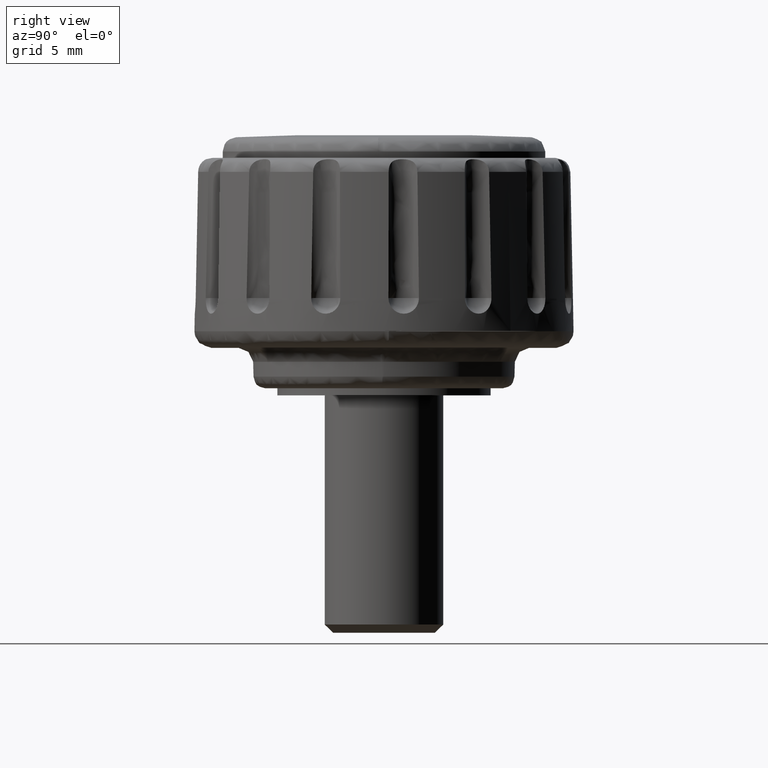
[diagram: clean part render]
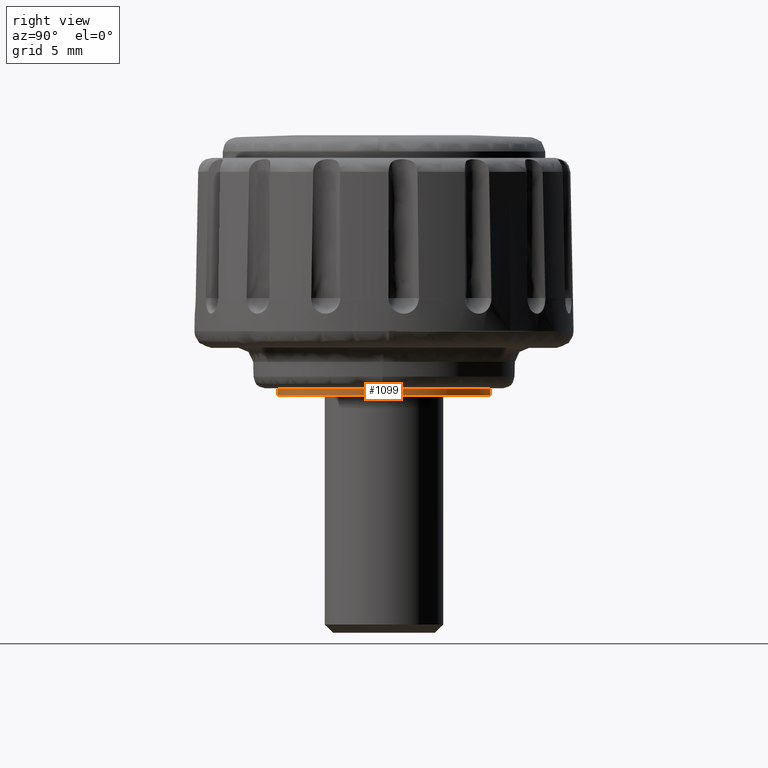
[diagram: same view with one face highlighted and labeled with its STEP entity id]
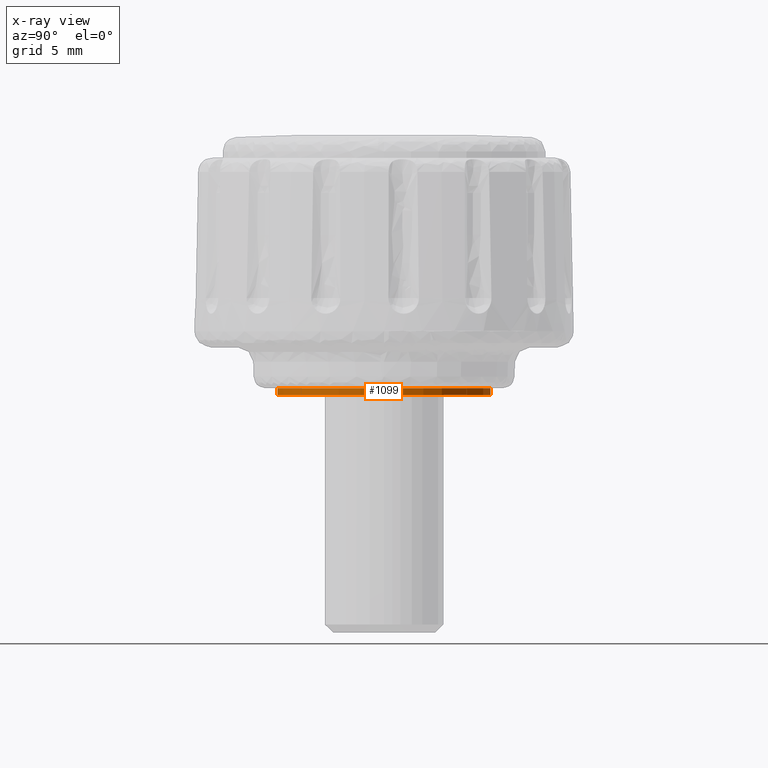
[diagram: x-ray of the same camera — body ghosted, the highlighted face saturated]
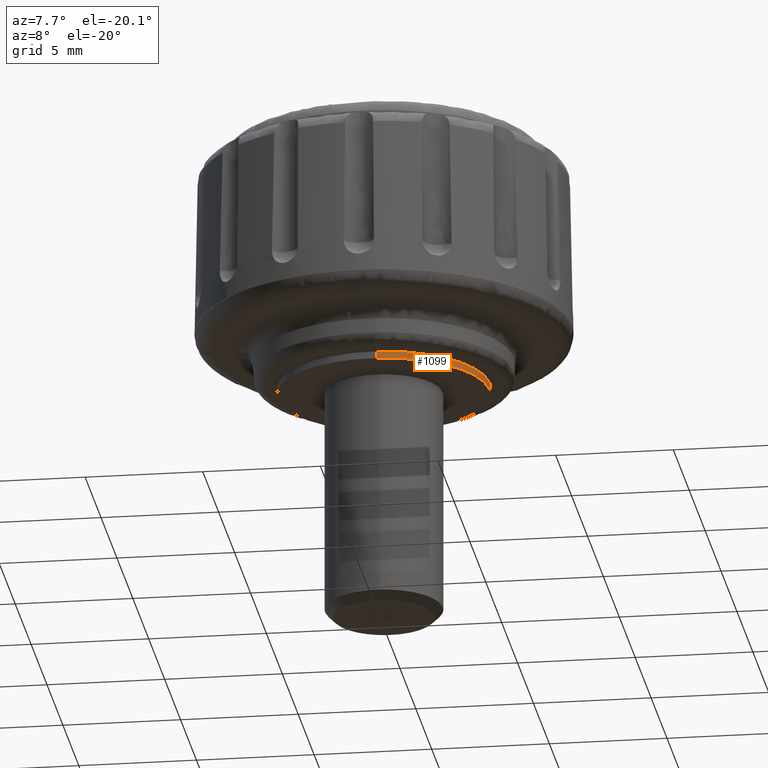
[diagram: same view with one face highlighted and labeled with its STEP entity id]
A machine part, right view. The second image highlights one B-rep face of the part: STEP entity #1099.
The next image is the same camera in x-ray: the body ghosted, the highlighted face saturated — about 0% of this face is hidden behind the body in this view.
A second angle (auxiliary view) of the same face is appended — the face is thin or edge-on in the first view.
In plain terms, the highlighted face is a freeform B-spline surface patch.
Its self-contained STEP definition (entity closure, byte-faithful):
#768=CARTESIAN_POINT('',(-0.274718145469998,4.491609023954146,-0.000001784795439));
#769=VERTEX_POINT('',#768);
#783=CARTESIAN_POINT('',(4.500002409279020,0.0,-0.000001784795445));
#784=VERTEX_POINT('',#783);
#785=CARTESIAN_POINT('',(-0.274718145469998,4.491609023954147,-0.000001784795439));
#786=CARTESIAN_POINT('',(-0.137487293091705,4.500002409279020,-0.000001784795445));
#787=CARTESIAN_POINT('',(0.0,4.500002409279020,-0.000001784795445));
#788=CARTESIAN_POINT('',(4.500002409279020,4.500002409279020,-0.000001784795445));
#789=CARTESIAN_POINT('',(4.500002409279020,0.0,-0.000001784795445));
#797=(BOUNDED_CURVE()B_SPLINE_CURVE(2,(#785,#786,#787,#788,#789),.UNSPECIFIED.,.F.,.U.)B_SPLINE_CURVE_WITH_KNOTS((3,2,3),(0.239332978742128,0.250000000000000,0.500000000000000),.UNSPECIFIED.)CURVE()GEOMETRIC_REPRESENTATION_ITEM()RATIONAL_B_SPLINE_CURVE((0.976072077036188,0.987502807234522,1.0,0.707106781186548,1.0))REPRESENTATION_ITEM(''));
#798=EDGE_CURVE('',#769,#784,#797,.T.);
#800=CARTESIAN_POINT('',(0.274718145469999,-4.491609023954146,-0.000001784795439));
#801=VERTEX_POINT('',#800);
#802=CARTESIAN_POINT('',(4.500002409279020,0.0,-0.000001784795445));
#803=CARTESIAN_POINT('',(4.500002409279021,-4.233179973062441,-0.000001784795445));
#804=CARTESIAN_POINT('',(0.274718145469999,-4.491609023954167,-0.000001784795445));
#812=(BOUNDED_CURVE()B_SPLINE_CURVE(2,(#802,#803,#804),.UNSPECIFIED.,.F.,.U.)B_SPLINE_CURVE_WITH_KNOTS((3,3),(0.500000000000000,0.739332978742128),.UNSPECIFIED.)CURVE()GEOMETRIC_REPRESENTATION_ITEM()RATIONAL_B_SPLINE_CURVE((1.0,0.719603973952026,0.976072077036188))REPRESENTATION_ITEM(''));
#813=EDGE_CURVE('',#784,#801,#812,.T.);
#1033=CARTESIAN_POINT('',(-0.274718574989822,4.491608997683628,0.307501290204457));
#1034=CARTESIAN_POINT('',(4.216890422693806,4.766327572673450,0.307501290204457));
#1035=CARTESIAN_POINT('',(4.491608997683628,0.274718574989822,0.307501290204457));
#1036=CARTESIAN_POINT('',(4.766327572673450,-4.216890422693806,0.307501290204457));
#1037=CARTESIAN_POINT('',(0.274718574989822,-4.491608997683628,0.307501290204457));
#1038=CARTESIAN_POINT('',(-0.274718574989822,4.491608997683628,-0.007689361670442));
#1039=CARTESIAN_POINT('',(4.216890422693806,4.766327572673450,-0.007689361670442));
#1040=CARTESIAN_POINT('',(4.491608997683628,0.274718574989822,-0.007689361670442));
#1041=CARTESIAN_POINT('',(4.766327572673450,-4.216890422693806,-0.007689361670442));
#1042=CARTESIAN_POINT('',(0.274718574989822,-4.491608997683628,-0.007689361670442));
#1050=(BOUNDED_SURFACE()B_SPLINE_SURFACE(2,1,((#1033,#1038),(#1034,#1039),(#1035,#1040),(#1036,#1041),(#1037,#1042)),.UNSPECIFIED.,.F.,.F.,.U.)B_SPLINE_SURFACE_WITH_KNOTS((3,2,3),(2,2),(0.0,7.455848114539891,14.911696229079780),(0.0,0.315190651874899),.UNSPECIFIED.)GEOMETRIC_REPRESENTATION_ITEM()RATIONAL_B_SPLINE_SURFACE(((1.0,1.0),(0.707106781186548,0.707106781186548),(1.0,1.0),(0.707106781186548,0.707106781186548),(1.0,1.0)))REPRESENTATION_ITEM('')SURFACE());
#1051=ORIENTED_EDGE('',*,*,#798,.F.);
#1052=CARTESIAN_POINT('',(-0.274718150762136,4.491609023630466,0.300001215204459));
#1053=VERTEX_POINT('',#1052);
#1054=CARTESIAN_POINT('',(-0.274718150762136,4.491609023630466,0.300001215204459));
#1055=CARTESIAN_POINT('',(-0.274718145469998,4.491609023954146,-0.000001784795439));
#1056=QUASI_UNIFORM_CURVE('',1,(#1054,#1055),.UNSPECIFIED.,.F.,.U.);
#1057=EDGE_CURVE('',#1053,#769,#1056,.T.);
#1058=ORIENTED_EDGE('',*,*,#1057,.F.);
#1059=CARTESIAN_POINT('',(4.500002409279020,0.0,0.300001215204459));
#1060=VERTEX_POINT('',#1059);
#1061=CARTESIAN_POINT('',(-0.274718150762136,4.491609023630466,0.300001215204459));
#1062=CARTESIAN_POINT('',(-0.137487295745194,4.500002409279020,0.300001215204459));
#1063=CARTESIAN_POINT('',(0.0,4.500002409279020,0.300001215204459));
#1064=CARTESIAN_POINT('',(4.500002409279020,4.500002409279020,0.300001215204459));
#1065=CARTESIAN_POINT('',(4.500002409279020,0.0,0.300001215204459));
#1073=(BOUNDED_CURVE()B_SPLINE_CURVE(2,(#1061,#1062,#1063,#1064,#1065),.UNSPECIFIED.,.F.,.U.)B_SPLINE_CURVE_WITH_KNOTS((3,2,3),(0.239332978538829,0.250000000000000,0.500000000000000),.UNSPECIFIED.)CURVE()GEOMETRIC_REPRESENTATION_ITEM()RATIONAL_B_SPLINE_CURVE((0.976072076600479,0.987502806996342,1.0,0.707106781186548,1.0))REPRESENTATION_ITEM(''));
#1074=EDGE_CURVE('',#1053,#1060,#1073,.T.);
#1075=ORIENTED_EDGE('',*,*,#1074,.T.);
#1076=CARTESIAN_POINT('',(0.274718150762137,-4.491609023630466,0.300001215204459));
#1077=VERTEX_POINT('',#1076);
#1078=CARTESIAN_POINT('',(4.500002409279020,0.0,0.300001215204459));
#1079=CARTESIAN_POINT('',(4.500002409279020,-4.233179968065469,0.300001215204460));
#1080=CARTESIAN_POINT('',(0.274718150762139,-4.491609023630486,0.300001215204459));
#1088=(BOUNDED_CURVE()B_SPLINE_CURVE(2,(#1078,#1079,#1080),.UNSPECIFIED.,.F.,.U.)B_SPLINE_CURVE_WITH_KNOTS((3,3),(0.500000000000000,0.739332978538829),.UNSPECIFIED.)CURVE()GEOMETRIC_REPRESENTATION_ITEM()RATIONAL_B_SPLINE_CURVE((1.0,0.719603974190206,0.976072076600479))REPRESENTATION_ITEM(''));
#1089=EDGE_CURVE('',#1060,#1077,#1088,.T.);
#1090=ORIENTED_EDGE('',*,*,#1089,.T.);
#1091=CARTESIAN_POINT('',(0.274718150762137,-4.491609023630466,0.300001215204459));
#1092=CARTESIAN_POINT('',(0.274718145469999,-4.491609023954146,-0.000001784795439));
#1093=QUASI_UNIFORM_CURVE('',1,(#1091,#1092),.UNSPECIFIED.,.F.,.U.);
#1094=EDGE_CURVE('',#1077,#801,#1093,.T.);
#1095=ORIENTED_EDGE('',*,*,#1094,.T.);
#1096=ORIENTED_EDGE('',*,*,#813,.F.);
#1097=EDGE_LOOP('',(#1051,#1058,#1075,#1090,#1095,#1096));
#1098=FACE_OUTER_BOUND('',#1097,.T.);
#1099=ADVANCED_FACE('',(#1098),#1050,.T.);